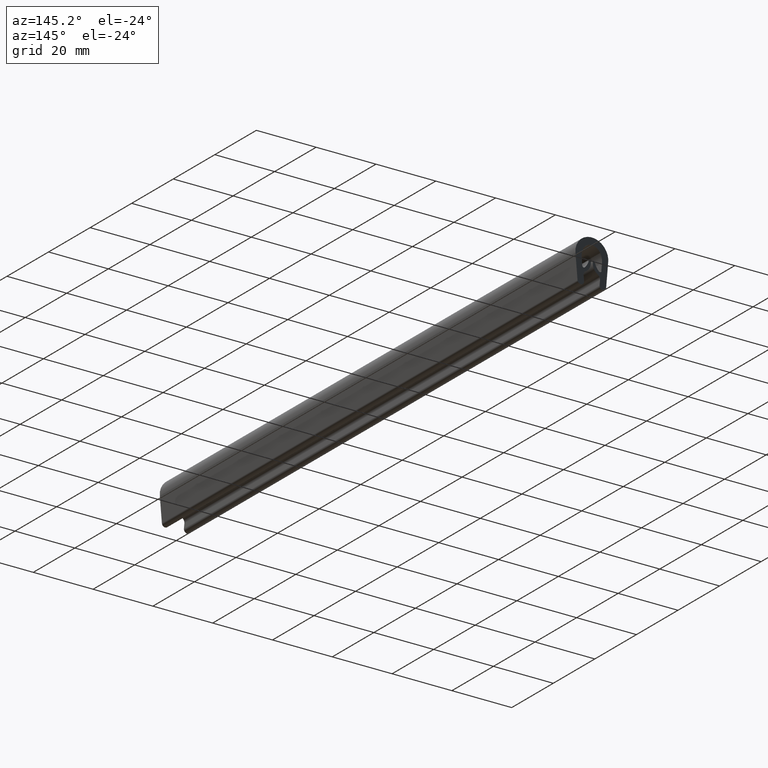
[diagram: clean part render]
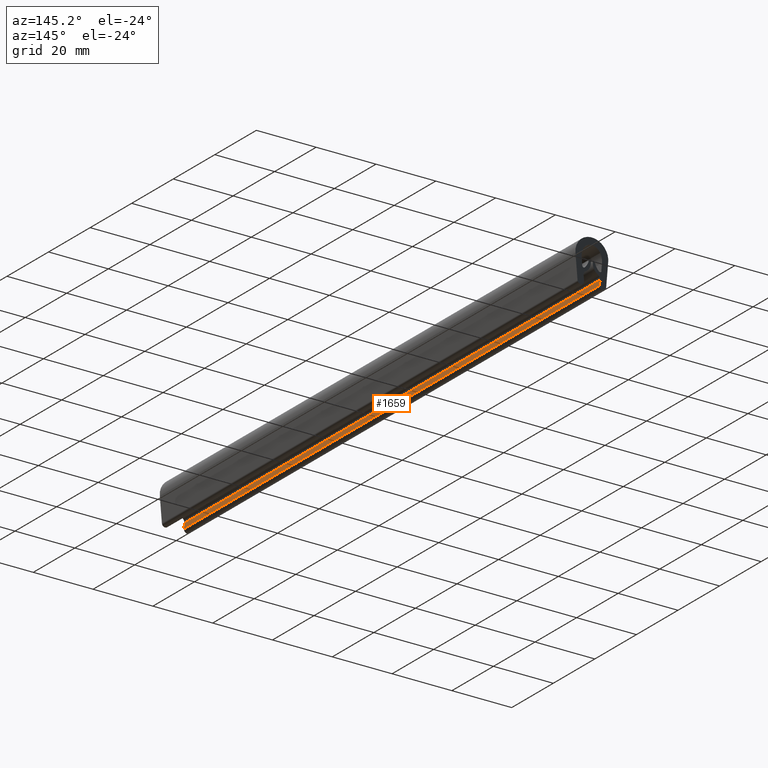
[diagram: same view with one face highlighted and labeled with its STEP entity id]
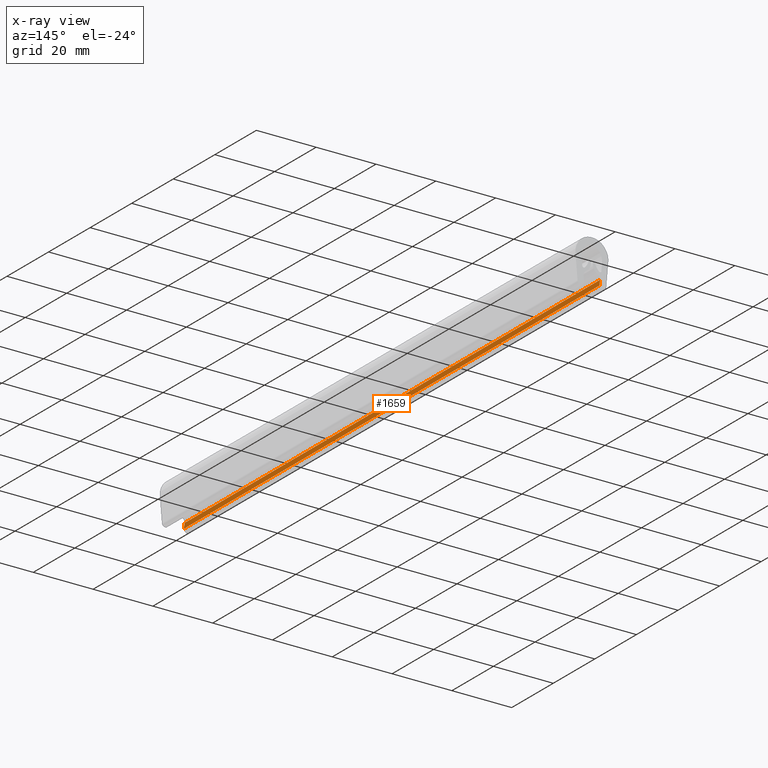
[diagram: x-ray of the same camera — body ghosted, the highlighted face saturated]
A machine part, auxiliary view. The second image highlights one B-rep face of the part: STEP entity #1659.
The next image is the same camera in x-ray: the body ghosted, the highlighted face saturated — about 0% of this face is hidden behind the body in this view.
In plain terms, the highlighted face is a freeform B-spline surface patch.
Its self-contained STEP definition (entity closure, byte-faithful):
#536=CARTESIAN_POINT('',(-2.591211016860155,0.0,-13.805714336452899));
#537=VERTEX_POINT('',#536);
#538=CARTESIAN_POINT('',(-2.740059698185580,0.0,-12.079526665262099));
#539=VERTEX_POINT('',#538);
#540=CARTESIAN_POINT('',(-2.591211016860155,0.0,-13.805714336452899));
#541=CARTESIAN_POINT('',(-2.740059698185580,0.0,-12.079526665262099));
#542=QUASI_UNIFORM_CURVE('',1,(#540,#541),.UNSPECIFIED.,.F.,.U.);
#543=EDGE_CURVE('',#537,#539,#542,.T.);
#840=CARTESIAN_POINT('',(-2.591211016860155,200.0,-13.805714336452899));
#841=VERTEX_POINT('',#840);
#842=CARTESIAN_POINT('',(-2.740059698185580,200.0,-12.079526665262099));
#843=VERTEX_POINT('',#842);
#844=CARTESIAN_POINT('',(-2.591211016860155,200.0,-13.805714336452899));
#845=CARTESIAN_POINT('',(-2.740059698185580,200.0,-12.079526665262099));
#846=QUASI_UNIFORM_CURVE('',1,(#844,#845),.UNSPECIFIED.,.F.,.U.);
#847=EDGE_CURVE('',#841,#843,#846,.T.);
#1165=CARTESIAN_POINT('',(-2.591211016860155,200.0,-13.805714336452899));
#1166=CARTESIAN_POINT('',(-2.591211016860155,0.0,-13.805714336452899));
#1167=QUASI_UNIFORM_CURVE('',1,(#1165,#1166),.UNSPECIFIED.,.F.,.U.);
#1168=EDGE_CURVE('',#841,#537,#1167,.T.);
#1638=CARTESIAN_POINT('',(-2.740059698185580,200.0,-12.079526665262099));
#1639=CARTESIAN_POINT('',(-2.740059698185580,0.0,-12.079526665262099));
#1640=QUASI_UNIFORM_CURVE('',1,(#1638,#1639),.UNSPECIFIED.,.F.,.U.);
#1641=EDGE_CURVE('',#843,#539,#1640,.T.);
#1648=CARTESIAN_POINT('',(-2.747494689529314,-9.989999612361194,-11.993303594431810));
#1649=CARTESIAN_POINT('',(-2.583776021524014,-9.989999612361194,-13.891937453583161));
#1650=CARTESIAN_POINT('',(-2.747494689529314,209.990004976779200,-11.993303594431810));
#1651=CARTESIAN_POINT('',(-2.583776021524014,209.990004976779200,-13.891937453583161));
#1652=B_SPLINE_SURFACE_WITH_KNOTS('',1,1,((#1648,#1650),(#1649,#1651)),.UNSPECIFIED.,.F.,.F.,.U.,(2,2),(2,2),(0.0,1.905679493873347),(0.0,219.980004589140410),.UNSPECIFIED.);
#1653=ORIENTED_EDGE('',*,*,#543,.F.);
#1654=ORIENTED_EDGE('',*,*,#1168,.F.);
#1655=ORIENTED_EDGE('',*,*,#847,.T.);
#1656=ORIENTED_EDGE('',*,*,#1641,.T.);
#1657=EDGE_LOOP('',(#1653,#1654,#1655,#1656));
#1658=FACE_OUTER_BOUND('',#1657,.T.);
#1659=ADVANCED_FACE('',(#1658),#1652,.T.);